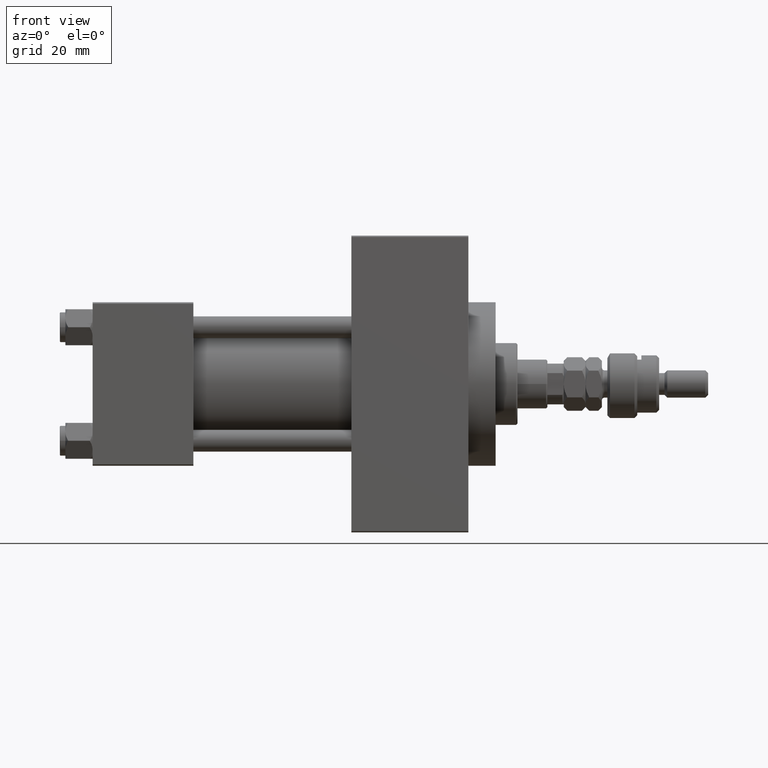
[diagram: clean part render]
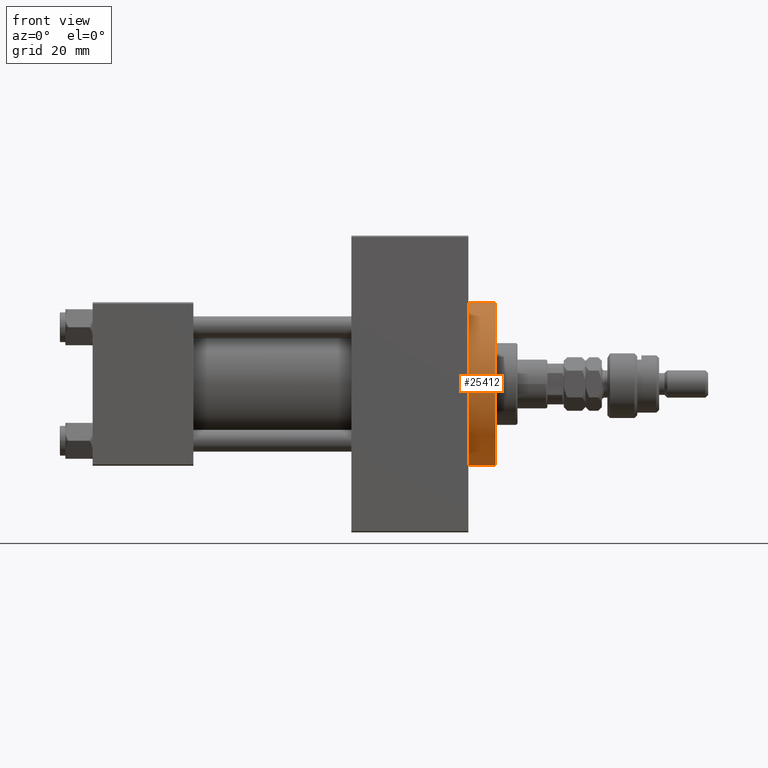
[diagram: same view with one face highlighted and labeled with its STEP entity id]
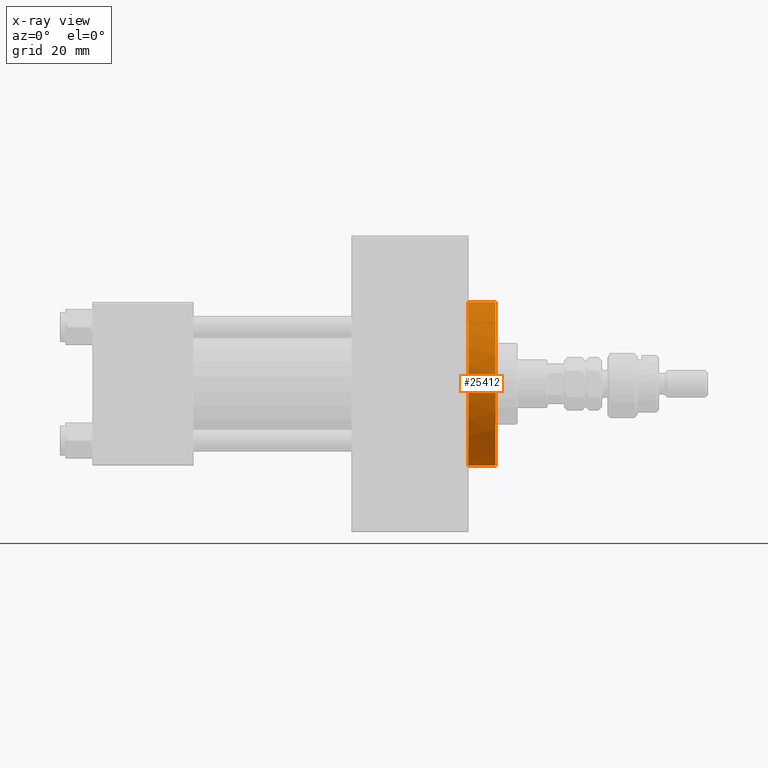
[diagram: x-ray of the same camera — body ghosted, the highlighted face saturated]
A machine part, front view. The second image highlights one B-rep face of the part: STEP entity #25412.
The next image is the same camera in x-ray: the body ghosted, the highlighted face saturated — about 0% of this face is hidden behind the body in this view.
In plain terms, the highlighted cylindrical surface (partial cylindrical patch) has radius 30 mm, axis along (-1, -0, -0).
Its self-contained STEP definition (entity closure, byte-faithful):
#46 = CARTESIAN_POINT ( 'NONE',  ( 148.0000000000000284, 0.000000000000000000, 0.000000000000000000 ) ) ;
#340 = ORIENTED_EDGE ( 'NONE', *, *, #12724, .F. ) ;
#550 = DIRECTION ( 'NONE',  ( 0.000000000000000000, 0.000000000000000000, 1.000000000000000000 ) ) ;
#2639 = DIRECTION ( 'NONE',  ( 1.000000000000000000, 0.000000000000000000, 0.000000000000000000 ) ) ;
#2719 = ORIENTED_EDGE ( 'NONE', *, *, #2883, .T. ) ;
#2883 = EDGE_CURVE ( 'NONE', #10219, #5729, #16195, .T. ) ;
#3363 = CARTESIAN_POINT ( 'NONE',  ( 148.0000000000000284, 0.000000000000000000, 30.00000000000000000 ) ) ;
#3458 = ORIENTED_EDGE ( 'NONE', *, *, #25233, .T. ) ;
#5729 = VERTEX_POINT ( 'NONE', #38475 ) ;
#6768 = ORIENTED_EDGE ( 'NONE', *, *, #45562, .F. ) ;
#8700 = DIRECTION ( 'NONE',  ( 0.000000000000000000, 0.000000000000000000, -1.000000000000000000 ) ) ;
#9201 = DIRECTION ( 'NONE',  ( 1.000000000000000000, 0.000000000000000000, 0.000000000000000000 ) ) ;
#10219 = VERTEX_POINT ( 'NONE', #35907 ) ;
#12414 = AXIS2_PLACEMENT_3D ( 'NONE', #46, #38761, #23555 ) ;
#12724 = EDGE_CURVE ( 'NONE', #15158, #49220, #14049, .T. ) ;
#13251 = CARTESIAN_POINT ( 'NONE',  ( 138.0000000000000000, 0.000000000000000000, 0.000000000000000000 ) ) ;
#14049 = CIRCLE ( 'NONE', #12414, 30.00000000000000000 ) ;
#14134 = LINE ( 'NONE', #45028, #21724 ) ;
#15158 = VERTEX_POINT ( 'NONE', #36677 ) ;
#16195 = CIRCLE ( 'NONE', #32410, 30.00000000000000000 ) ;
#16938 = VECTOR ( 'NONE', #49665, 1000.000000000000000 ) ;
#17757 = CARTESIAN_POINT ( 'NONE',  ( 148.0000000000000284, 3.673940397442059178E-15, -30.00000000000000000 ) ) ;
#21724 = VECTOR ( 'NONE', #25770, 1000.000000000000000 ) ;
#22610 = EDGE_LOOP ( 'NONE', ( #6768, #340, #30289, #2719, #3458 ) ) ;
#23555 = DIRECTION ( 'NONE',  ( 0.000000000000000000, 0.000000000000000000, -1.000000000000000000 ) ) ;
#25233 = EDGE_CURVE ( 'NONE', #5729, #31224, #39751, .T. ) ;
#25412 = ADVANCED_FACE ( 'NONE', ( #30414 ), #39005, .T. ) ;
#25770 = DIRECTION ( 'NONE',  ( -1.000000000000000000, -0.000000000000000000, -0.000000000000000000 ) ) ;
#29712 = DIRECTION ( 'NONE',  ( 0.000000000000000000, 0.000000000000000000, -1.000000000000000000 ) ) ;
#30289 = ORIENTED_EDGE ( 'NONE', *, *, #47111, .T. ) ;
#30414 = FACE_OUTER_BOUND ( 'NONE', #22610, .T. ) ;
#31224 = VERTEX_POINT ( 'NONE', #38014 ) ;
#31408 = DIRECTION ( 'NONE',  ( -1.000000000000000000, -0.000000000000000000, -0.000000000000000000 ) ) ;
#32410 = AXIS2_PLACEMENT_3D ( 'NONE', #37321, #2639, #29712 ) ;
#35907 = CARTESIAN_POINT ( 'NONE',  ( 138.0000000000000000, 0.000000000000000000, 30.00000000000000000 ) ) ;
#36677 = CARTESIAN_POINT ( 'NONE',  ( 148.0000000000000284, 0.000000000000000000, 30.00000000000000000 ) ) ;
#37321 = CARTESIAN_POINT ( 'NONE',  ( 138.0000000000000000, 0.000000000000000000, 0.000000000000000000 ) ) ;
#38014 = CARTESIAN_POINT ( 'NONE',  ( 138.0000000000000000, 3.673940397442059178E-15, -30.00000000000000000 ) ) ;
#38040 = LINE ( 'NONE', #3363, #16938 ) ;
#38122 = AXIS2_PLACEMENT_3D ( 'NONE', #13251, #9201, #8700 ) ;
#38475 = CARTESIAN_POINT ( 'NONE',  ( 138.0000000000000000, -30.00000000000000000, 0.000000000000000000 ) ) ;
#38761 = DIRECTION ( 'NONE',  ( 1.000000000000000000, 0.000000000000000000, 0.000000000000000000 ) ) ;
#39005 = CYLINDRICAL_SURFACE ( 'NONE', #40561, 30.00000000000000000 ) ;
#39751 = CIRCLE ( 'NONE', #38122, 30.00000000000000000 ) ;
#40561 = AXIS2_PLACEMENT_3D ( 'NONE', #46852, #31408, #550 ) ;
#45028 = CARTESIAN_POINT ( 'NONE',  ( 148.0000000000000284, 3.673940397442059178E-15, -30.00000000000000000 ) ) ;
#45562 = EDGE_CURVE ( 'NONE', #49220, #31224, #14134, .T. ) ;
#46852 = CARTESIAN_POINT ( 'NONE',  ( 148.0000000000000284, 0.000000000000000000, 0.000000000000000000 ) ) ;
#47111 = EDGE_CURVE ( 'NONE', #15158, #10219, #38040, .T. ) ;
#49220 = VERTEX_POINT ( 'NONE', #17757 ) ;
#49665 = DIRECTION ( 'NONE',  ( -1.000000000000000000, -0.000000000000000000, -0.000000000000000000 ) ) ;